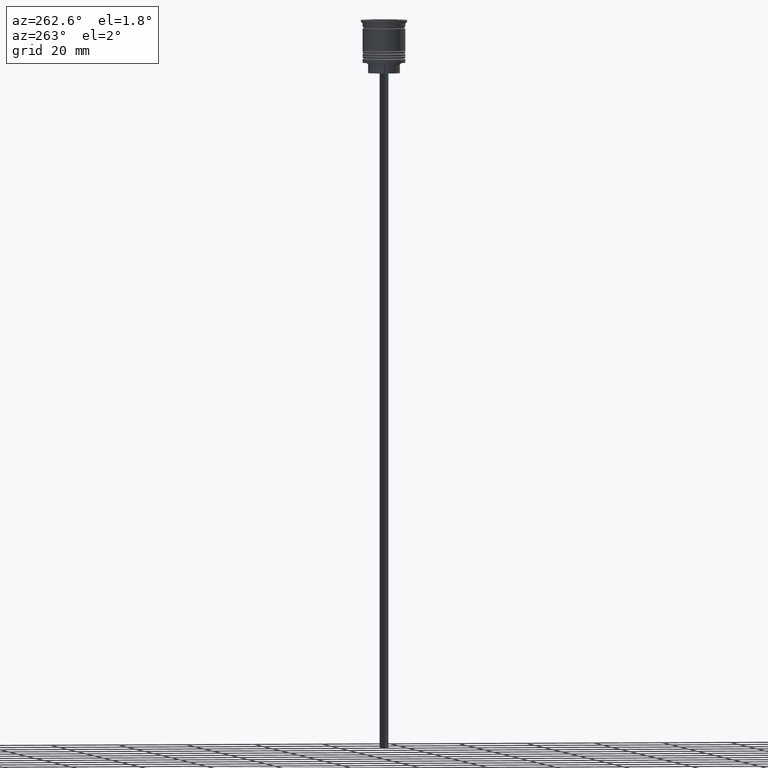
[diagram: clean part render]
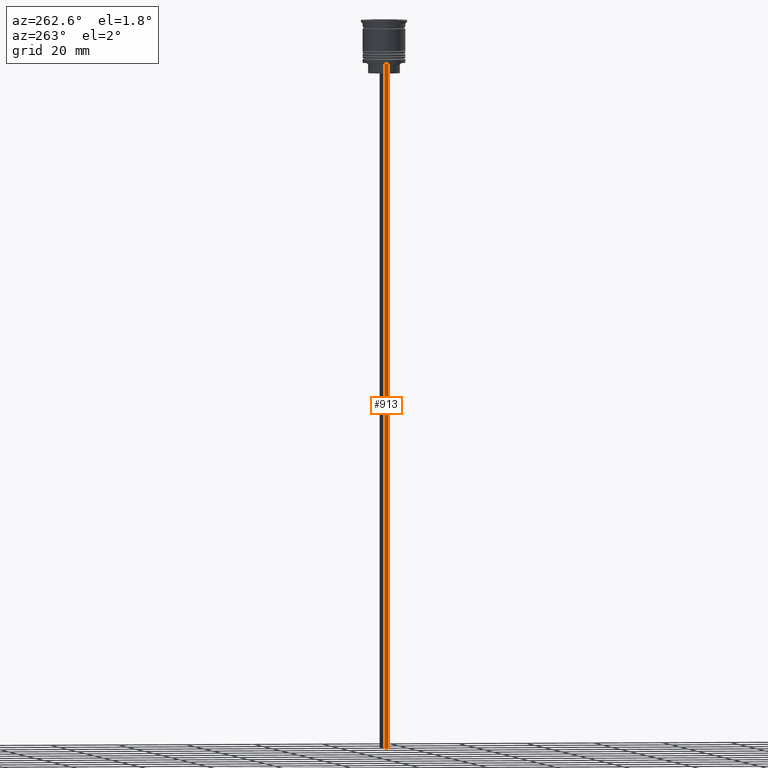
[diagram: same view with one face highlighted and labeled with its STEP entity id]
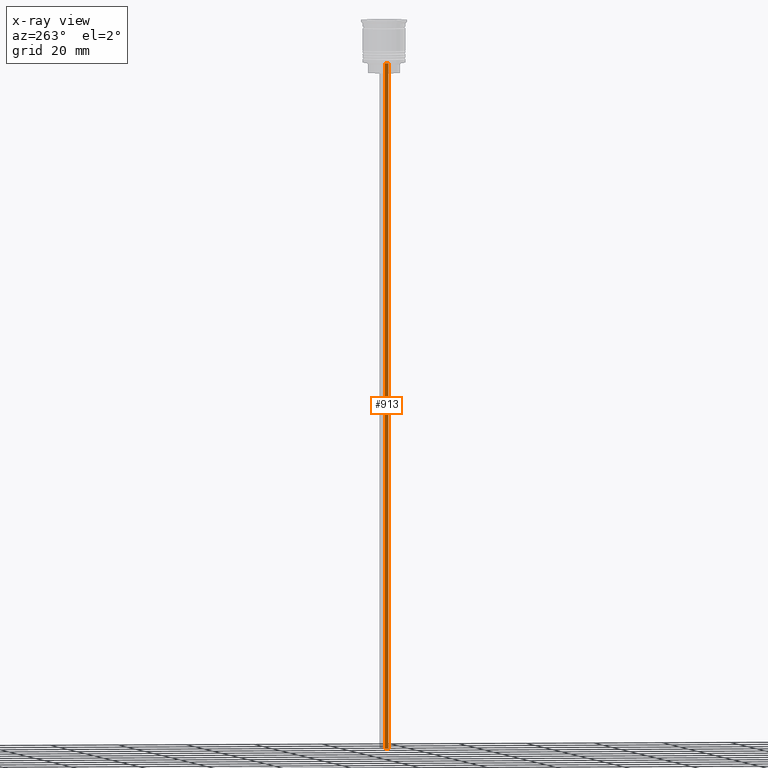
[diagram: x-ray of the same camera — body ghosted, the highlighted face saturated]
A machine part, auxiliary view. The second image highlights one B-rep face of the part: STEP entity #913.
The next image is the same camera in x-ray: the body ghosted, the highlighted face saturated — about 0% of this face is hidden behind the body in this view.
In plain terms, the highlighted planar face has unit normal (-1, 0, 0).
Its self-contained STEP definition (entity closure, byte-faithful):
#103 = EDGE_CURVE ( 'NONE', #1929, #2155, #2153, .T. ) ;
#139 = AXIS2_PLACEMENT_3D ( 'NONE', #887, #576, #1854 ) ;
#312 = VERTEX_POINT ( 'NONE', #1434 ) ;
#344 = CARTESIAN_POINT ( 'NONE',  ( -5.999999999999983125, -0.5000000000000017764, -212.5000000000000284 ) ) ;
#363 = VECTOR ( 'NONE', #1780, 1000.000000000000000 ) ;
#377 = ORIENTED_EDGE ( 'NONE', *, *, #103, .F. ) ;
#406 = VECTOR ( 'NONE', #1464, 1000.000000000000000 ) ;
#434 = CARTESIAN_POINT ( 'NONE',  ( -5.999999999999983125, -0.5000000000000017764, -212.5000000000000284 ) ) ;
#548 = EDGE_CURVE ( 'NONE', #312, #1929, #1521, .T. ) ;
#576 = DIRECTION ( 'NONE',  ( -1.000000000000000000, 0.000000000000000000, 0.000000000000000000 ) ) ;
#596 = EDGE_CURVE ( 'NONE', #1917, #2155, #1891, .T. ) ;
#623 = CARTESIAN_POINT ( 'NONE',  ( -5.999999999999983125, 0.4999999999999982792, -0.4584054212077061097 ) ) ;
#753 = CARTESIAN_POINT ( 'NONE',  ( -5.999999999999983125, -0.5000000000000017764, -12.50000000000000000 ) ) ;
#762 = FACE_OUTER_BOUND ( 'NONE', #1869, .T. ) ;
#872 = ORIENTED_EDGE ( 'NONE', *, *, #596, .T. ) ;
#887 = CARTESIAN_POINT ( 'NONE',  ( -5.999999999999983125, -0.5000000000000017764, -0.4584054212077061097 ) ) ;
#913 = ADVANCED_FACE ( 'NONE', ( #762 ), #955, .T. ) ;
#955 = PLANE ( 'NONE',  #139 ) ;
#960 = EDGE_CURVE ( 'NONE', #1917, #312, #1515, .T. ) ;
#963 = CARTESIAN_POINT ( 'NONE',  ( -5.999999999999983125, 0.4999999999999985012, -12.50000000000000000 ) ) ;
#991 = CARTESIAN_POINT ( 'NONE',  ( -5.999999999999983125, -0.5000000000000017764, -0.4584054212077061097 ) ) ;
#1155 = VECTOR ( 'NONE', #2063, 1000.000000000000000 ) ;
#1167 = ORIENTED_EDGE ( 'NONE', *, *, #548, .F. ) ;
#1273 = CARTESIAN_POINT ( 'NONE',  ( -5.999999999999983125, 0.4999999999999982792, -212.5000000000000284 ) ) ;
#1434 = CARTESIAN_POINT ( 'NONE',  ( -5.999999999999983125, -0.5000000000000017764, -12.50000000000000000 ) ) ;
#1464 = DIRECTION ( 'NONE',  ( 0.000000000000000000, -1.000000000000000000, 0.000000000000000000 ) ) ;
#1515 = LINE ( 'NONE', #753, #406 ) ;
#1521 = LINE ( 'NONE', #991, #2062 ) ;
#1780 = DIRECTION ( 'NONE',  ( 0.000000000000000000, 1.000000000000000000, 0.000000000000000000 ) ) ;
#1854 = DIRECTION ( 'NONE',  ( 0.000000000000000000, 0.000000000000000000, 1.000000000000000000 ) ) ;
#1869 = EDGE_LOOP ( 'NONE', ( #2002, #872, #377, #1167 ) ) ;
#1891 = LINE ( 'NONE', #623, #1155 ) ;
#1917 = VERTEX_POINT ( 'NONE', #963 ) ;
#1929 = VERTEX_POINT ( 'NONE', #434 ) ;
#2002 = ORIENTED_EDGE ( 'NONE', *, *, #960, .F. ) ;
#2062 = VECTOR ( 'NONE', #2239, 1000.000000000000000 ) ;
#2063 = DIRECTION ( 'NONE',  ( 0.000000000000000000, 0.000000000000000000, -1.000000000000000000 ) ) ;
#2153 = LINE ( 'NONE', #344, #363 ) ;
#2155 = VERTEX_POINT ( 'NONE', #1273 ) ;
#2239 = DIRECTION ( 'NONE',  ( 0.000000000000000000, 0.000000000000000000, -1.000000000000000000 ) ) ;